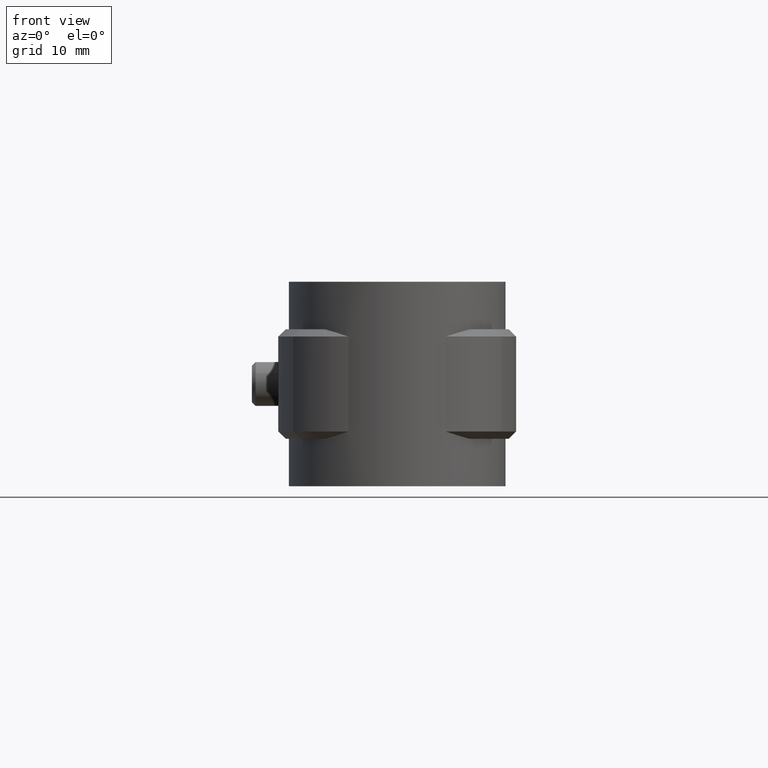
[diagram: clean part render]
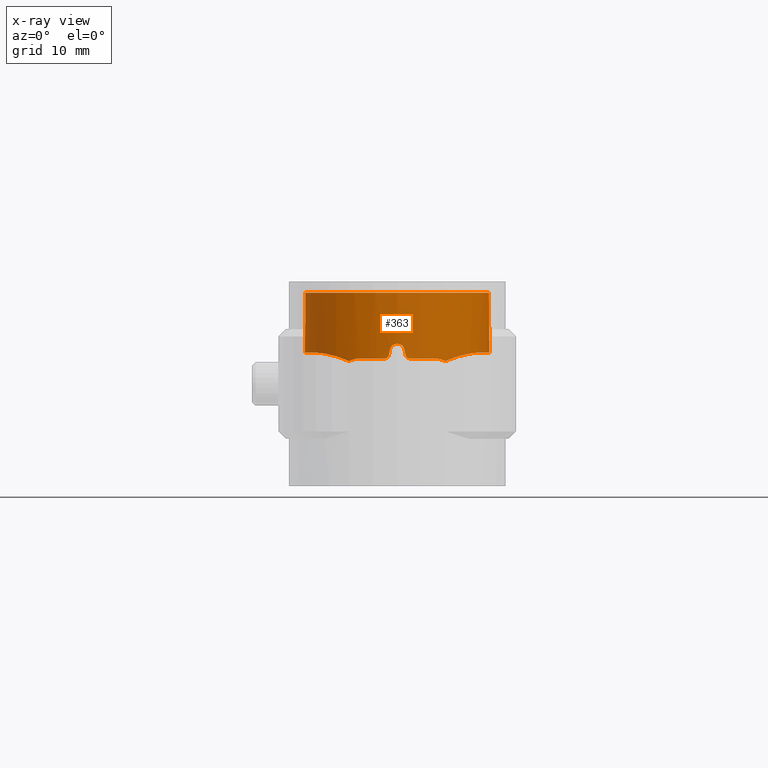
[diagram: x-ray — body ghosted, one internal face saturated and labeled with its STEP entity id]
A machine part, front view, then the same camera in x-ray: the body is ghosted and one INTERNAL B-rep face — a face not visible from any outside direction — is saturated and labeled: STEP entity #363.
In plain terms, the highlighted cylindrical surface (partial cylindrical patch) has radius 12.65 mm, axis along (0, 0, 1).
Its self-contained STEP definition (entity closure, byte-faithful):
#363 = ADVANCED_FACE( '', ( #689 ), #690, .T. );
#689 = FACE_OUTER_BOUND( '', #1386, .T. );
#690 = CYLINDRICAL_SURFACE( '', #1387, 12.6500000000000 );
#1386 = EDGE_LOOP( '', ( #2599, #2600, #2601, #2602, #2603, #2604, #2605, #2606, #2607, #2608, #2609, #2610, #2611, #2612, #2613, #2614 ) );
#1387 = AXIS2_PLACEMENT_3D( '', #2615, #2616, #2617 );
#2599 = ORIENTED_EDGE( '', *, *, #6282, .F. );
#2600 = ORIENTED_EDGE( '', *, *, #6283, .F. );
#2601 = ORIENTED_EDGE( '', *, *, #6284, .F. );
#2602 = ORIENTED_EDGE( '', *, *, #6285, .F. );
#2603 = ORIENTED_EDGE( '', *, *, #6286, .F. );
#2604 = ORIENTED_EDGE( '', *, *, #6287, .T. );
#2605 = ORIENTED_EDGE( '', *, *, #6288, .F. );
#2606 = ORIENTED_EDGE( '', *, *, #6289, .F. );
#2607 = ORIENTED_EDGE( '', *, *, #6290, .F. );
#2608 = ORIENTED_EDGE( '', *, *, #6291, .F. );
#2609 = ORIENTED_EDGE( '', *, *, #6292, .F. );
#2610 = ORIENTED_EDGE( '', *, *, #6293, .F. );
#2611 = ORIENTED_EDGE( '', *, *, #6294, .F. );
#2612 = ORIENTED_EDGE( '', *, *, #6295, .F. );
#2613 = ORIENTED_EDGE( '', *, *, #6296, .F. );
#2614 = ORIENTED_EDGE( '', *, *, #6297, .F. );
#2615 = CARTESIAN_POINT( '', ( 0.000000000000000, 0.000000000000000, 0.000000000000000 ) );
#2616 = DIRECTION( '', ( 0.000000000000000, 0.000000000000000, 1.00000000000000 ) );
#2617 = DIRECTION( '', ( 1.00000000000000, -6.12303176911189E-017, 0.000000000000000 ) );
#6282 = EDGE_CURVE( '', #7191, #7192, #7193, .T. );
#6283 = EDGE_CURVE( '', #7194, #7191, #7195, .T. );
#6284 = EDGE_CURVE( '', #7196, #7194, #7197, .T. );
#6285 = EDGE_CURVE( '', #7198, #7196, #7199, .T. );
#6286 = EDGE_CURVE( '', #7200, #7198, #7201, .F. );
#6287 = EDGE_CURVE( '', #7200, #7202, #7203, .T. );
#6288 = EDGE_CURVE( '', #7204, #7202, #7205, .T. );
#6289 = EDGE_CURVE( '', #7206, #7204, #7207, .T. );
#6290 = EDGE_CURVE( '', #7208, #7206, #7209, .T. );
#6291 = EDGE_CURVE( '', #7210, #7208, #7211, .T. );
#6292 = EDGE_CURVE( '', #7212, #7210, #7213, .T. );
#6293 = EDGE_CURVE( '', #7214, #7212, #7215, .T. );
#6294 = EDGE_CURVE( '', #7216, #7214, #7217, .T. );
#6295 = EDGE_CURVE( '', #7218, #7216, #7219, .T. );
#6296 = EDGE_CURVE( '', #7220, #7218, #7221, .T. );
#6297 = EDGE_CURVE( '', #7192, #7220, #7222, .T. );
#7191 = VERTEX_POINT( '', #8705 );
#7192 = VERTEX_POINT( '', #8706 );
#7193 = B_SPLINE_CURVE_WITH_KNOTS( '', 3, ( #8707, #8708, #8709, #8710, #8711, #8712 ), .UNSPECIFIED., .F., .F., ( 4, 2, 4 ), ( 0.0100906522561431, 0.0109990439713762, 0.0119074356866093 ), .UNSPECIFIED. );
#7194 = VERTEX_POINT( '', #8713 );
#7195 = B_SPLINE_CURVE_WITH_KNOTS( '', 3, ( #8714, #8715, #8716, #8717, #8718, #8719, #8720, #8721, #8722, #8723 ), .UNSPECIFIED., .F., .F., ( 4, 2, 2, 2, 4 ), ( 5.85988037749158E-005, 0.00347660623275080, 0.00433110808999477, 0.00518560994723874, 0.00689461366172667 ), .UNSPECIFIED. );
#7196 = VERTEX_POINT( '', #8724 );
#7197 = B_SPLINE_CURVE_WITH_KNOTS( '', 3, ( #8725, #8726, #8727, #8728, #8729, #8730, #8731, #8732, #8733, #8734, #8735, #8736, #8737, #8738, #8739, #8740, #8741, #8742, #8743, #8744, #8745, #8746, #8747, #8748, #8749, #8750 ), .UNSPECIFIED., .F., .F., ( 4, 2, 2, 2, 2, 2, 2, 2, 2, 2, 2, 2, 4 ), ( 0.000000000000000, 0.00249437645396616, 0.00374156468094923, 0.00498875290793231, 0.00748312936189847, 0.00873031758888154, 0.00997750581586462, 0.0112246940428477, 0.0124718822698308, 0.0149662587237969, 0.0162134469507800, 0.0174606351777631, 0.0199550116317293 ), .UNSPECIFIED. );
#7198 = VERTEX_POINT( '', #8751 );
#7199 = LINE( '', #8752, #8753 );
#7200 = VERTEX_POINT( '', #8754 );
#7201 = CIRCLE( '', #8755, 12.6500000000000 );
#7202 = VERTEX_POINT( '', #8756 );
#7203 = LINE( '', #8757, #8758 );
#7204 = VERTEX_POINT( '', #8759 );
#7205 = B_SPLINE_CURVE_WITH_KNOTS( '', 3, ( #8760, #8761, #8762, #8763, #8764, #8765, #8766, #8767, #8768, #8769, #8770, #8771, #8772, #8773, #8774, #8775, #8776, #8777, #8778, #8779, #8780, #8781, #8782, #8783 ), .UNSPECIFIED., .F., .F., ( 4, 2, 2, 2, 2, 2, 2, 2, 2, 2, 2, 4 ), ( 0.000123474632194732, 0.00261783787521389, 0.00511220111823305, 0.00760656436125221, 0.00885374598276179, 0.0101009276042714, 0.0113481092257810, 0.0125952908472905, 0.0150896540903097, 0.0163368357118193, 0.0175840173333289, 0.0200783805763480 ), .UNSPECIFIED. );
#7206 = VERTEX_POINT( '', #8784 );
#7207 = B_SPLINE_CURVE_WITH_KNOTS( '', 3, ( #8785, #8786, #8787, #8788, #8789, #8790, #8791, #8792, #8793, #8794 ), .UNSPECIFIED., .F., .F., ( 4, 2, 2, 2, 4 ), ( 0.0163913576067059, 0.0180919454549892, 0.0197925333032724, 0.0214931211515556, 0.0231937089998388 ), .UNSPECIFIED. );
#7208 = VERTEX_POINT( '', #8795 );
#7209 = B_SPLINE_CURVE_WITH_KNOTS( '', 3, ( #8796, #8797, #8798, #8799, #8800, #8801 ), .UNSPECIFIED., .F., .F., ( 4, 2, 4 ), ( 3.87895961444886E-018, 0.000910512804113378, 0.00182102560822675 ), .UNSPECIFIED. );
#7210 = VERTEX_POINT( '', #8802 );
#7211 = CIRCLE( '', #8803, 12.6500000000000 );
#7212 = VERTEX_POINT( '', #8804 );
#7213 = B_SPLINE_CURVE_WITH_KNOTS( '', 3, ( #8805, #8806, #8807, #8808, #8809, #8810 ), .UNSPECIFIED., .F., .F., ( 4, 2, 4 ), ( 2.04566856771261E-018, 0.000337068705912377, 0.000674137411824751 ), .UNSPECIFIED. );
#7214 = VERTEX_POINT( '', #8811 );
#7215 = ELLIPSE( '', #8812, 57.6278365723218, 12.6500000000000 );
#7216 = VERTEX_POINT( '', #8813 );
#7217 = B_SPLINE_CURVE_WITH_KNOTS( '', 3, ( #8814, #8815, #8816, #8817, #8818, #8819, #8820, #8821, #8822, #8823 ), .UNSPECIFIED., .F., .F., ( 4, 2, 2, 2, 4 ), ( 9.26342742239755E-019, 0.000671845170584310, 0.00134369034116862, 0.00201553551175293, 0.00268738068233724 ), .UNSPECIFIED. );
#7218 = VERTEX_POINT( '', #8824 );
#7219 = ELLIPSE( '', #8825, 57.6278071750398, 12.6500000000000 );
#7220 = VERTEX_POINT( '', #8826 );
#7221 = B_SPLINE_CURVE_WITH_KNOTS( '', 3, ( #8827, #8828, #8829, #8830, #8831, #8832 ), .UNSPECIFIED., .F., .F., ( 4, 2, 4 ), ( 8.59738825340030E-018, 0.000337043991337634, 0.000674087982675260 ), .UNSPECIFIED. );
#7222 = CIRCLE( '', #8833, 12.6500000000000 );
#8705 = CARTESIAN_POINT( '', ( 6.57960247942588, -10.8042274695016, -9.37672351416152 ) );
#8706 = CARTESIAN_POINT( '', ( 5.00000000000000, -11.6199182441186, -9.00000000000000 ) );
#8707 = CARTESIAN_POINT( '', ( 6.57960247942600, -10.8042274695015, -9.37672351416107 ) );
#8708 = CARTESIAN_POINT( '', ( 6.34052204868563, -10.9498236446396, -9.25580817320678 ) );
#8709 = CARTESIAN_POINT( '', ( 6.08938828217912, -11.0919140628977, -9.16274913460628 ) );
#8710 = CARTESIAN_POINT( '', ( 5.56062363523282, -11.3662074597087, -9.03449696183386 ) );
#8711 = CARTESIAN_POINT( '', ( 5.28261945013620, -11.4983083307789, -8.99999999999997 ) );
#8712 = CARTESIAN_POINT( '', ( 5.00000000000000, -11.6199182441186, -8.99999999999997 ) );
#8713 = CARTESIAN_POINT( '', ( 11.1495424023163, -5.97580155451563, -8.20109605634821 ) );
#8714 = CARTESIAN_POINT( '', ( 11.1495424023162, -5.97580155451571, -8.20109605634823 ) );
#8715 = CARTESIAN_POINT( '', ( 10.6039488669907, -6.99376009966597, -8.22500716846319 ) );
#8716 = CARTESIAN_POINT( '', ( 9.93547968695067, -7.91182993516134, -8.31875221941053 ) );
#8717 = CARTESIAN_POINT( '', ( 8.95600583137875, -8.93828724611483, -8.55213913970161 ) );
#8718 = CARTESIAN_POINT( '', ( 8.75217603439929, -9.13788455063543, -8.60499120660334 ) );
#8719 = CARTESIAN_POINT( '', ( 8.33761929078108, -9.51764802668444, -8.72219766766916 ) );
#8720 = CARTESIAN_POINT( '', ( 8.12611478439745, -9.69870173761210, -8.78670743031012 ) );
#8721 = CARTESIAN_POINT( '', ( 7.48050729744157, -10.2161019038757, -9.00071995863926 ) );
#8722 = CARTESIAN_POINT( '', ( 7.03507594377347, -10.5268513827991, -9.16977561257300 ) );
#8723 = CARTESIAN_POINT( '', ( 6.57960247942588, -10.8042274695016, -9.37672351416151 ) );
#8724 = CARTESIAN_POINT( '', ( 5.85231316725979, 11.2148531239744, -8.20260589970387 ) );
#8725 = CARTESIAN_POINT( '', ( 5.85231316725934, 11.2148531239731, -8.20260589970385 ) );
#8726 = CARTESIAN_POINT( '', ( 6.59794107912372, 10.8257576986258, -8.20356499197763 ) );
#8727 = CARTESIAN_POINT( '', ( 7.29393614220599, 10.3688873930111, -8.20355715747852 ) );
#8728 = CARTESIAN_POINT( '', ( 8.26576112260759, 9.58503524343391, -8.20219149592458 ) );
#8729 = CARTESIAN_POINT( '', ( 8.57758602681270, 9.30720541353947, -8.20158168744974 ) );
#8730 = CARTESIAN_POINT( '', ( 9.17629669996696, 8.71749009356285, -8.20092931501323 ) );
#8731 = CARTESIAN_POINT( '', ( 9.45932473010887, 8.40931026748969, -8.20105003394513 ) );
#8732 = CARTESIAN_POINT( '', ( 10.2568878380046, 7.45050642418489, -8.20174828607762 ) );
#8733 = CARTESIAN_POINT( '', ( 10.7222911454385, 6.76407684133075, -8.20225164519557 ) );
#8734 = CARTESIAN_POINT( '', ( 11.3195387213502, 5.66259515298403, -8.20174842934424 ) );
#8735 = CARTESIAN_POINT( '', ( 11.5021155961946, 5.28185791413269, -8.20143013964172 ) );
#8736 = CARTESIAN_POINT( '', ( 11.8252478178920, 4.51222785979918, -8.20103815348101 ) );
#8737 = CARTESIAN_POINT( '', ( 11.9668880697765, 4.12164971837732, -8.20109146120736 ) );
#8738 = CARTESIAN_POINT( '', ( 12.2110966808853, 3.32919274383891, -8.20162927332460 ) );
#8739 = CARTESIAN_POINT( '', ( 12.3136640595220, 2.92731360622922, -8.20199811256752 ) );
#8740 = CARTESIAN_POINT( '', ( 12.4793558267556, 2.11214717034617, -8.20241121867395 ) );
#8741 = CARTESIAN_POINT( '', ( 12.5426135806990, 1.69750269326355, -8.20245370676014 ) );
#8742 = CARTESIAN_POINT( '', ( 12.6700177994339, 0.444783402922497, -8.20200524149384 ) );
#8743 = CARTESIAN_POINT( '', ( 12.6713167891820, -0.385689320641319, -8.20086165440364 ) );
#8744 = CARTESIAN_POINT( '', ( 12.5521000054791, -1.62462820621140, -8.20129639344753 ) );
#8745 = CARTESIAN_POINT( '', ( 12.4920173210421, -2.03647110020305, -8.20164890957711 ) );
#8746 = CARTESIAN_POINT( '', ( 12.3300674897962, -2.85782207078181, -8.20207673529739 ) );
#8747 = CARTESIAN_POINT( '', ( 12.2280231506897, -3.26683956506675, -8.20214679828905 ) );
#8748 = CARTESIAN_POINT( '', ( 11.8650218838964, -4.46552565387462, -8.20175565684342 ) );
#8749 = CARTESIAN_POINT( '', ( 11.5463207507958, -5.23549967262511, -8.20074770352726 ) );
#8750 = CARTESIAN_POINT( '', ( 11.1495424675118, -5.97580143287507, -8.20109609405691 ) );
#8751 = CARTESIAN_POINT( '', ( 5.85231316725979, 11.2148531239744, 0.000000000000000 ) );
#8752 = CARTESIAN_POINT( '', ( 5.85231316725979, 11.2148531239744, 0.000000000000000 ) );
#8753 = VECTOR( '', #12255, 1000.00000000000 );
#8754 = CARTESIAN_POINT( '', ( -5.85231316725979, 11.2148531239744, 0.000000000000000 ) );
#8755 = AXIS2_PLACEMENT_3D( '', #12256, #12257, #12258 );
#8756 = CARTESIAN_POINT( '', ( -5.85231316725979, 11.2148531239744, -8.20260589970385 ) );
#8757 = CARTESIAN_POINT( '', ( -5.85231316725979, 11.2148531239744, 0.000000000000000 ) );
#8758 = VECTOR( '', #12259, 1000.00000000000 );
#8759 = CARTESIAN_POINT( '', ( -11.1495423744635, -5.97580147875309, -8.20109599986964 ) );
#8760 = CARTESIAN_POINT( '', ( -11.1495424675117, -5.97580143287513, -8.20109609405690 ) );
#8761 = CARTESIAN_POINT( '', ( -11.5462697273289, -5.23559487128878, -8.20074774832835 ) );
#8762 = CARTESIAN_POINT( '', ( -11.8644454227148, -4.46664932871944, -8.20175336416003 ) );
#8763 = CARTESIAN_POINT( '', ( -12.3476129150178, -2.87271243169487, -8.20227732342655 ) );
#8764 = CARTESIAN_POINT( '', ( -12.5118370616149, -2.04127776054385, -8.20144450347338 ) );
#8765 = CARTESIAN_POINT( '', ( -12.6713449762135, -0.387166690045515, -8.20086026949541 ) );
#8766 = CARTESIAN_POINT( '', ( -12.6699003702803, 0.442421168903739, -8.20200151695035 ) );
#8767 = CARTESIAN_POINT( '', ( -12.5434847591502, 1.69067828632384, -8.20245268929745 ) );
#8768 = CARTESIAN_POINT( '', ( -12.4801209034526, 2.10781147784772, -8.20241260229938 ) );
#8769 = CARTESIAN_POINT( '', ( -12.3142689722508, 2.92490455741764, -8.20200014032407 ) );
#8770 = CARTESIAN_POINT( '', ( -12.2116311648724, 3.32722504130373, -8.20163099455981 ) );
#8771 = CARTESIAN_POINT( '', ( -11.9675850105415, 4.11962027349909, -8.20109245463586 ) );
#8772 = CARTESIAN_POINT( '', ( -11.8261762540022, 4.50969490971199, -8.20103773254576 ) );
#8773 = CARTESIAN_POINT( '', ( -11.5041021981496, 5.27744498634872, -8.20142703073669 ) );
#8774 = CARTESIAN_POINT( '', ( -11.3224095912278, 5.65695624358366, -8.20174488074490 ) );
#8775 = CARTESIAN_POINT( '', ( -10.7235890502882, 6.76236566993578, -8.20225279127314 ) );
#8776 = CARTESIAN_POINT( '', ( -10.2576650151755, 7.44929301363354, -8.20174987412826 ) );
#8777 = CARTESIAN_POINT( '', ( -9.46154063341245, 8.40678525560849, -8.20105152233134 ) );
#8778 = CARTESIAN_POINT( '', ( -9.17984098339020, 8.71371073549139, -8.20092836119298 ) );
#8779 = CARTESIAN_POINT( '', ( -8.58280750539198, 9.30234650975416, -8.20157313215250 ) );
#8780 = CARTESIAN_POINT( '', ( -8.26885460149367, 9.58241083135809, -8.20218642927397 ) );
#8781 = CARTESIAN_POINT( '', ( -7.29484744896712, 10.3684095088198, -8.20355730806807 ) );
#8782 = CARTESIAN_POINT( '', ( -6.59793866001500, 10.8257589610051, -8.20356498886952 ) );
#8783 = CARTESIAN_POINT( '', ( -5.85231316726028, 11.2148531239741, -8.20260589970741 ) );
#8784 = CARTESIAN_POINT( '', ( -6.57960247942593, -10.8042274695016, -9.37672351416148 ) );
#8785 = CARTESIAN_POINT( '', ( -6.57960247942579, -10.8042274695016, -9.37672351416155 ) );
#8786 = CARTESIAN_POINT( '', ( -7.03495842701375, -10.5269229486344, -9.16982900722434 ) );
#8787 = CARTESIAN_POINT( '', ( -7.48876742618623, -10.2100382387076, -8.99771179431613 ) );
#8788 = CARTESIAN_POINT( '', ( -8.34873343823261, -9.51972522590421, -8.71318651826830 ) );
#8789 = CARTESIAN_POINT( '', ( -8.75925825766940, -9.14408354934011, -8.59913960057815 ) );
#8790 = CARTESIAN_POINT( '', ( -9.53624887750037, -8.33059580871829, -8.41376147669005 ) );
#8791 = CARTESIAN_POINT( '', ( -9.90449540459635, -7.88977483979576, -8.34300383256565 ) );
#8792 = CARTESIAN_POINT( '', ( -10.5741024458609, -6.96677355070360, -8.24309688839619 ) );
#8793 = CARTESIAN_POINT( '', ( -10.8778215805962, -6.48277334643706, -8.21300445802236 ) );
#8794 = CARTESIAN_POINT( '', ( -11.1495424014128, -5.97580155620130, -8.20109605638781 ) );
#8795 = CARTESIAN_POINT( '', ( -5.00000000000005, -11.6199182441186, -9.00000000000000 ) );
#8796 = CARTESIAN_POINT( '', ( -5.00000000000005, -11.6199182441186, -8.99999999999997 ) );
#8797 = CARTESIAN_POINT( '', ( -5.28308541928925, -11.4981078262903, -8.99999999999997 ) );
#8798 = CARTESIAN_POINT( '', ( -5.55596831259693, -11.3684653140618, -9.03380034172485 ) );
#8799 = CARTESIAN_POINT( '', ( -6.08360756663290, -11.0950667624316, -9.16092296028160 ) );
#8800 = CARTESIAN_POINT( '', ( -6.34069499680202, -10.9497183219908, -9.25589564201592 ) );
#8801 = CARTESIAN_POINT( '', ( -6.57960247942593, -10.8042274695016, -9.37672351416148 ) );
#8802 = CARTESIAN_POINT( '', ( -1.65000000000003, -12.5419296760905, -9.00000000000000 ) );
#8803 = AXIS2_PLACEMENT_3D( '', #12260, #12261, #12262 );
#8804 = CARTESIAN_POINT( '', ( -1.16219512100914, -12.5964996130156, -8.60975609337372 ) );
#8805 = CARTESIAN_POINT( '', ( -1.16219512100915, -12.5964996130156, -8.60975609337372 ) );
#8806 = CARTESIAN_POINT( '', ( -1.18720947814538, -12.5941917048894, -8.72093101843522 ) );
#8807 = CARTESIAN_POINT( '', ( -1.24954934787487, -12.5884507075751, -8.82018977404716 ) );
#8808 = CARTESIAN_POINT( '', ( -1.42703900880617, -12.5695673933978, -8.96170403138557 ) );
#8809 = CARTESIAN_POINT( '', ( -1.53701800495577, -12.5567934408091, -8.99999999999994 ) );
#8810 = CARTESIAN_POINT( '', ( -1.65000000000003, -12.5419296760905, -8.99999999999994 ) );
#8811 = CARTESIAN_POINT( '', ( -0.975610000000027, -12.6123227491172, -7.78048800000004 ) );
#8812 = AXIS2_PLACEMENT_3D( '', #12263, #12264, #12265 );
#8813 = CARTESIAN_POINT( '', ( 0.975609757981813, -12.6123227678382, -7.78048781325256 ) );
#8814 = CARTESIAN_POINT( '', ( 0.975609757981815, -12.6123227678382, -7.78048781325256 ) );
#8815 = CARTESIAN_POINT( '', ( 0.925747919827143, -12.6161797652169, -7.55887973383118 ) );
#8816 = CARTESIAN_POINT( '', ( 0.801985168397354, -12.6257994018568, -7.36098208224729 ) );
#8817 = CARTESIAN_POINT( '', ( 0.447505617623077, -12.6433274682123, -7.07736094044302 ) );
#8818 = CARTESIAN_POINT( '', ( 0.227177114410496, -12.6500000472838, -6.99999942114392 ) );
#8819 = CARTESIAN_POINT( '', ( -0.227182380230096, -12.6499999527156, -7.00000057199539 ) );
#8820 = CARTESIAN_POINT( '', ( -0.447623219991114, -12.6433224289550, -7.07743440656527 ) );
#8821 = CARTESIAN_POINT( '', ( -0.801977967620008, -12.6257989818088, -7.36099663538955 ) );
#8822 = CARTESIAN_POINT( '', ( -0.925748166415757, -12.6161797471049, -7.55887974281661 ) );
#8823 = CARTESIAN_POINT( '', ( -0.975610000000027, -12.6123227491172, -7.78048800000004 ) );
#8824 = CARTESIAN_POINT( '', ( 1.16219499999999, -12.5964996241803, -8.60975599999998 ) );
#8825 = AXIS2_PLACEMENT_3D( '', #12266, #12267, #12268 );
#8826 = CARTESIAN_POINT( '', ( 1.64999999999995, -12.5419296760905, -9.00000000000000 ) );
#8827 = CARTESIAN_POINT( '', ( 1.64999999999995, -12.5419296760905, -8.99999999999994 ) );
#8828 = CARTESIAN_POINT( '', ( 1.53701791106060, -12.5567934531619, -9.00000000048486 ) );
#8829 = CARTESIAN_POINT( '', ( 1.42703558234737, -12.5695676761678, -8.96169705068740 ) );
#8830 = CARTESIAN_POINT( '', ( 1.24957569927388, -12.5884479857857, -8.82021510413116 ) );
#8831 = CARTESIAN_POINT( '', ( 1.18720939544563, -12.5941917127619, -8.72093109309756 ) );
#8832 = CARTESIAN_POINT( '', ( 1.16219499999999, -12.5964996241803, -8.60975599999998 ) );
#8833 = AXIS2_PLACEMENT_3D( '', #12269, #12270, #12271 );
#12255 = DIRECTION( '', ( 0.000000000000000, 0.000000000000000, -1.00000000000000 ) );
#12256 = CARTESIAN_POINT( '', ( 0.000000000000000, 0.000000000000000, 0.000000000000000 ) );
#12257 = DIRECTION( '', ( 0.000000000000000, 0.000000000000000, -1.00000000000000 ) );
#12258 = DIRECTION( '', ( -1.00000000000000, 0.000000000000000, 0.000000000000000 ) );
#12259 = DIRECTION( '', ( 0.000000000000000, 0.000000000000000, -1.00000000000000 ) );
#12260 = CARTESIAN_POINT( '', ( 0.000000000000000, 0.000000000000000, -9.00000000000000 ) );
#12261 = DIRECTION( '', ( 6.12303176911189E-017, -1.56572574765720E-016, -1.00000000000000 ) );
#12262 = DIRECTION( '', ( 0.000000000000000, 1.00000000000000, -1.56572574765720E-016 ) );
#12263 = CARTESIAN_POINT( '', ( 0.000000000000000, 0.000000000000000, -3.44443890776446 ) );
#12264 = DIRECTION( '', ( 0.975609806487711, 1.65590917266197E-017, -0.219511971165610 ) );
#12265 = DIRECTION( '', ( -0.219511971165610, -3.72579164482623E-018, -0.975609806487711 ) );
#12266 = CARTESIAN_POINT( '', ( 0.000000000000000, 0.000000000000000, -3.44444212055030 ) );
#12267 = DIRECTION( '', ( -0.975609781292647, -8.52982169786940E-017, -0.219512083143762 ) );
#12268 = DIRECTION( '', ( 0.219512083143762, 1.91920885342428E-017, -0.975609781292647 ) );
#12269 = CARTESIAN_POINT( '', ( 0.000000000000000, 0.000000000000000, -9.00000000000000 ) );
#12270 = DIRECTION( '', ( 6.12303176911189E-017, -1.56572574765720E-016, -1.00000000000000 ) );
#12271 = DIRECTION( '', ( 0.000000000000000, 1.00000000000000, -1.56572574765720E-016 ) );